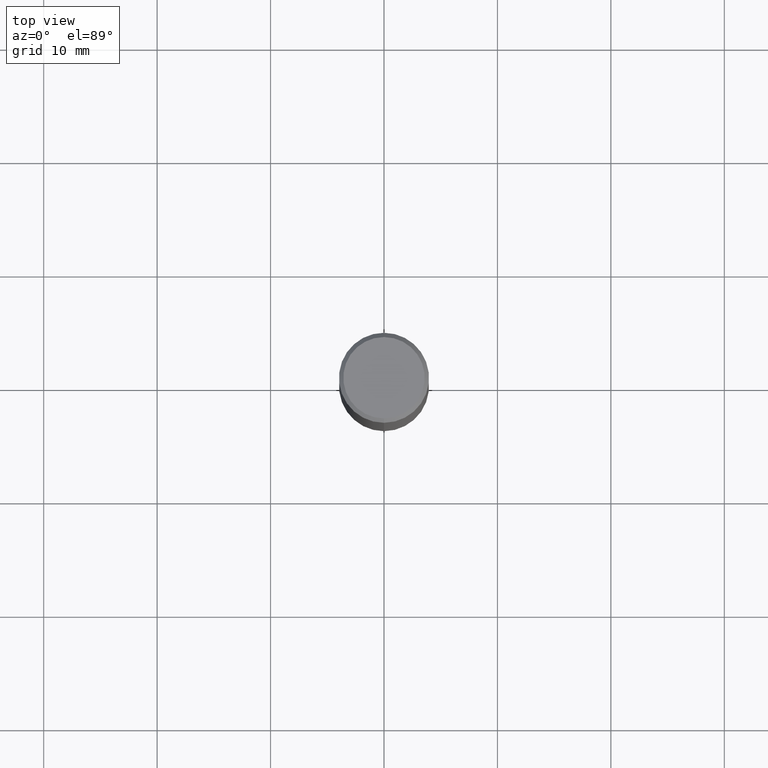
[diagram: clean part render]
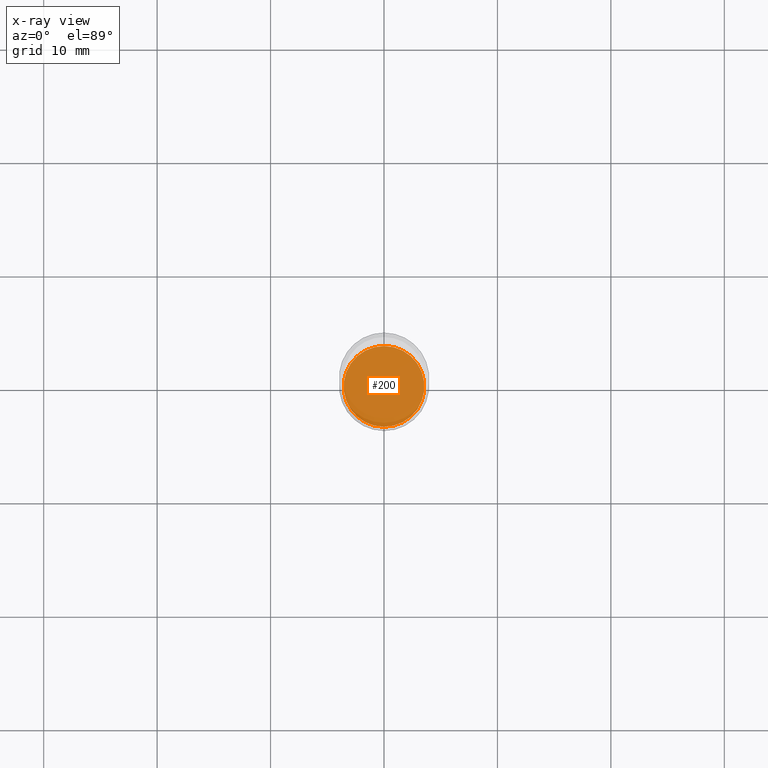
[diagram: x-ray — body ghosted, one internal face saturated and labeled with its STEP entity id]
A machine part, top view, then the same camera in x-ray: the body is ghosted and one INTERNAL B-rep face — a face not visible from any outside direction — is saturated and labeled: STEP entity #200.
In plain terms, the highlighted planar face has unit normal (-0, 0, 1).
Its self-contained STEP definition (entity closure, byte-faithful):
#21 = VERTEX_POINT ( 'NONE', #59 ) ;
#30 = DIRECTION ( 'NONE',  ( -6.982962677686265922E-15, -1.000000000000000000, 3.899854380677035588E-15 ) ) ;
#33 = EDGE_LOOP ( 'NONE', ( #116, #465 ) ) ;
#59 = CARTESIAN_POINT ( 'NONE',  ( 9.972467296393428329E-16, 0.1400999999999938961, -1.750000000000000666 ) ) ;
#116 = ORIENTED_EDGE ( 'NONE', *, *, #234, .F. ) ;
#122 = FACE_OUTER_BOUND ( 'NONE', #33, .T. ) ;
#131 = DIRECTION ( 'NONE',  ( -6.982962677686265922E-15, -1.000000000000000000, 3.899854380677035588E-15 ) ) ;
#133 = CARTESIAN_POINT ( 'NONE',  ( -9.783130711438031058E-16, -0.1401000000000061085, -1.749999999999999556 ) ) ;
#143 = AXIS2_PLACEMENT_3D ( 'NONE', #502, #219, #30 ) ;
#154 = PLANE ( 'NONE',  #309 ) ;
#200 = ADVANCED_FACE ( 'NONE', ( #122 ), #154, .F. ) ;
#219 = DIRECTION ( 'NONE',  ( -2.445560966219159716E-29, 3.491349360429001039E-15, 1.000000000000000000 ) ) ;
#223 = CIRCLE ( 'NONE', #452, 0.1401000000000000023 ) ;
#234 = EDGE_CURVE ( 'NONE', #328, #21, #388, .T. ) ;
#267 = DIRECTION ( 'NONE',  ( -6.982962677686265922E-15, -1.000000000000000000, 3.491349360429000645E-15 ) ) ;
#300 = EDGE_CURVE ( 'NONE', #21, #328, #223, .T. ) ;
#309 = AXIS2_PLACEMENT_3D ( 'NONE', #512, #464, #267 ) ;
#314 = DIRECTION ( 'NONE',  ( -2.445560966219159716E-29, 3.491349360429001039E-15, 1.000000000000000000 ) ) ;
#323 = CARTESIAN_POINT ( 'NONE',  ( 4.279731690883529924E-29, -6.109861380750751819E-15, -1.750000000000000222 ) ) ;
#328 = VERTEX_POINT ( 'NONE', #133 ) ;
#388 = CIRCLE ( 'NONE', #143, 0.1401000000000000023 ) ;
#452 = AXIS2_PLACEMENT_3D ( 'NONE', #323, #314, #131 ) ;
#464 = DIRECTION ( 'NONE',  ( -2.445560966219159716E-29, 3.491349360429000645E-15, 1.000000000000000000 ) ) ;
#465 = ORIENTED_EDGE ( 'NONE', *, *, #300, .F. ) ;
#502 = CARTESIAN_POINT ( 'NONE',  ( 4.279731690883529924E-29, -6.109861380750751819E-15, -1.750000000000000222 ) ) ;
#512 = CARTESIAN_POINT ( 'NONE',  ( 4.279731690883529924E-29, -6.109861380750751819E-15, -1.750000000000000222 ) ) ;